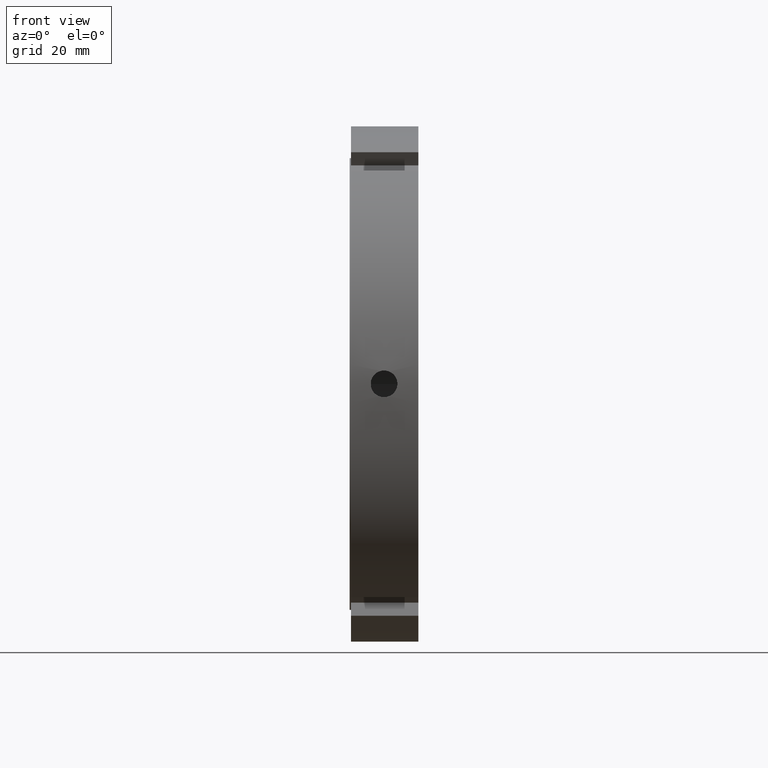
[diagram: clean part render]
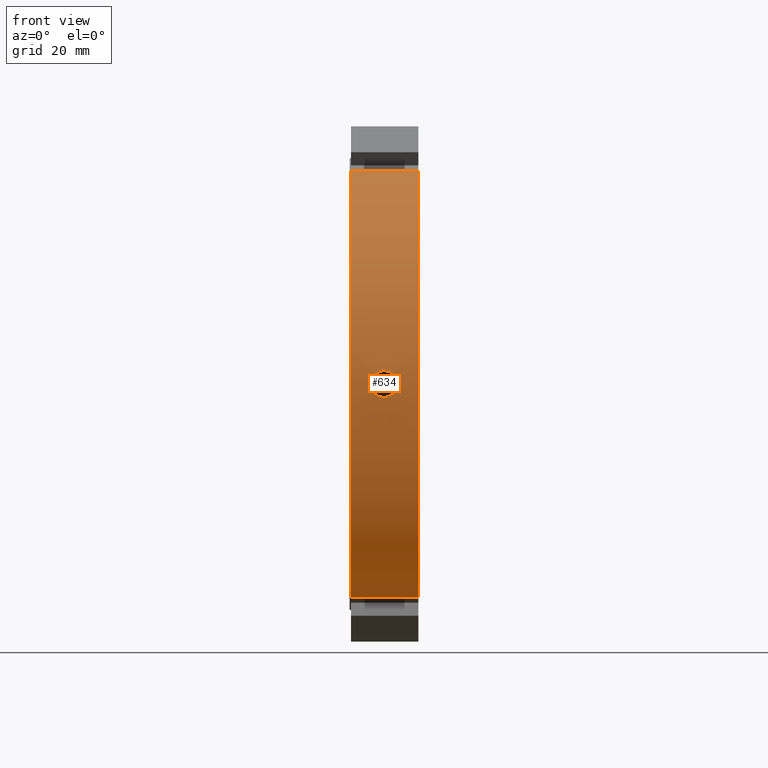
[diagram: same view with one face highlighted and labeled with its STEP entity id]
A machine part, front view. The second image highlights one B-rep face of the part: STEP entity #634.
In plain terms, the highlighted cylindrical surface (partial cylindrical patch) has radius 97.5 mm, axis along (1, 0, 0).
Its self-contained STEP definition (entity closure, byte-faithful):
#75=CARTESIAN_POINT('',(0.499999999999972,-54.686374477952612,-80.719579077551785));
#76=VERTEX_POINT('',#75);
#91=CARTESIAN_POINT('',(25.999999999999979,-54.686374477952612,-80.719579077551785));
#92=VERTEX_POINT('',#91);
#99=CARTESIAN_POINT('',(0.499999999999972,-54.686374477952612,-80.719579077551771));
#100=DIRECTION('',(1.0,0.0,0.0));
#101=VECTOR('',#100,25.500000000000007);
#102=LINE('',#99,#101);
#103=EDGE_CURVE('',#76,#92,#102,.T.);
#303=CARTESIAN_POINT('',(0.499999999999972,-54.686374477952555,80.719579077551828));
#304=VERTEX_POINT('',#303);
#313=CARTESIAN_POINT('',(25.999999999999979,-54.686374477952555,80.719579077551828));
#314=VERTEX_POINT('',#313);
#315=CARTESIAN_POINT('',(25.999999999999979,-54.686374477952555,80.719579077551828));
#316=DIRECTION('',(-1.0,0.0,0.0));
#317=VECTOR('',#316,25.500000000000007);
#318=LINE('',#315,#317);
#319=EDGE_CURVE('',#314,#304,#318,.T.);
#499=CARTESIAN_POINT('',(25.999999999999979,0.0,0.0));
#500=DIRECTION('',(1.0,0.0,0.0));
#501=DIRECTION('',(0.0,1.0,0.0));
#502=AXIS2_PLACEMENT_3D('',#499,#500,#501);
#503=CIRCLE('',#502,97.500000000000000);
#504=EDGE_CURVE('',#314,#92,#503,.T.);
#576=CARTESIAN_POINT('',(13.249999999999975,0.0,0.0));
#577=DIRECTION('',(1.0,0.0,0.0));
#578=DIRECTION('',(0.0,1.0,0.0));
#579=AXIS2_PLACEMENT_3D('',#576,#577,#578);
#580=CYLINDRICAL_SURFACE('',#579,97.500000000000000);
#581=ORIENTED_EDGE('',*,*,#103,.T.);
#582=ORIENTED_EDGE('',*,*,#504,.F.);
#583=ORIENTED_EDGE('',*,*,#319,.T.);
#584=CARTESIAN_POINT('',(0.499999999999972,0.0,0.0));
#585=DIRECTION('',(1.0,0.0,0.0));
#586=DIRECTION('',(0.0,1.0,0.0));
#587=AXIS2_PLACEMENT_3D('',#584,#585,#586);
#588=CIRCLE('',#587,97.500000000000000);
#589=EDGE_CURVE('',#304,#76,#588,.T.);
#590=ORIENTED_EDGE('',*,*,#589,.T.);
#591=EDGE_LOOP('',(#581,#582,#583,#590));
#592=FACE_OUTER_BOUND('',#591,.T.);
#593=CARTESIAN_POINT('',(12.999999999999979,-97.368974478526766,5.053000000000000));
#594=VERTEX_POINT('',#593);
#595=CARTESIAN_POINT('',(12.999999999999979,-97.368974478526766,5.053000000000000));
#596=CARTESIAN_POINT('',(13.634587972057997,-97.368974478526766,5.053000000000000));
#597=CARTESIAN_POINT('',(14.311396599046720,-97.375816544670386,4.926154171616794));
#598=CARTESIAN_POINT('',(15.556317737733581,-97.400537200313096,4.410441664610868));
#599=CARTESIAN_POINT('',(16.124439886049633,-97.418059776064482,4.021581244621594));
#600=CARTESIAN_POINT('',(17.021581135228150,-97.450958747754584,3.124439995443078));
#601=CARTESIAN_POINT('',(17.410441637241568,-97.468471051238680,2.556317797342441));
#602=CARTESIAN_POINT('',(17.926154214932694,-97.493168216866678,1.311396500942987));
#603=CARTESIAN_POINT('',(18.052999999999976,-97.500000000000000,0.634587817300354));
#604=CARTESIAN_POINT('',(18.052999999999976,-97.500000000000000,-0.634587817300352));
#605=CARTESIAN_POINT('',(17.926154214932691,-97.493168216866678,-1.311396500942985));
#606=CARTESIAN_POINT('',(17.410441637241572,-97.468471051238680,-2.556317797342437));
#607=CARTESIAN_POINT('',(17.021581135228150,-97.450958747754584,-3.124439995443078));
#608=CARTESIAN_POINT('',(16.124439886049636,-97.418059776064482,-4.021581244621594));
#609=CARTESIAN_POINT('',(15.556317737733579,-97.400537200313096,-4.410441664610870));
#610=CARTESIAN_POINT('',(14.311396599046720,-97.375816544670386,-4.926154171616795));
#611=CARTESIAN_POINT('',(13.634587972057997,-97.368974478526781,-5.053000000000000));
#612=CARTESIAN_POINT('',(12.365412027941961,-97.368974478526781,-5.053000000000000));
#613=CARTESIAN_POINT('',(11.688603400953234,-97.375816544670386,-4.926154171616796));
#614=CARTESIAN_POINT('',(10.443682262266377,-97.400537200313096,-4.410441664610869));
#615=CARTESIAN_POINT('',(9.875560113950323,-97.418059776064482,-4.021581244621594));
#616=CARTESIAN_POINT('',(8.978418864771809,-97.450958747754584,-3.124439995443080));
#617=CARTESIAN_POINT('',(8.589558362758389,-97.468471051238680,-2.556317797342442));
#618=CARTESIAN_POINT('',(8.073845785067267,-97.493168216866678,-1.311396500942990));
#619=CARTESIAN_POINT('',(7.946999999999980,-97.500000000000000,-0.634587817300355));
#620=CARTESIAN_POINT('',(7.946999999999979,-97.500000000000000,0.634587817300352));
#621=CARTESIAN_POINT('',(8.073845785067265,-97.493168216866678,1.311396500942985));
#622=CARTESIAN_POINT('',(8.589558362758385,-97.468471051238680,2.556317797342437));
#623=CARTESIAN_POINT('',(8.978418864771808,-97.450958747754584,3.124439995443077));
#624=CARTESIAN_POINT('',(9.875560113950321,-97.418059776064482,4.021581244621593));
#625=CARTESIAN_POINT('',(10.443682262266375,-97.400537200313096,4.410441664610868));
#626=CARTESIAN_POINT('',(11.688603400953234,-97.375816544670386,4.926154171616796));
#627=CARTESIAN_POINT('',(12.365412027941961,-97.368974478526766,5.052999999999999));
#628=CARTESIAN_POINT('',(12.999999999999979,-97.368974478526766,5.052999999999999));
#629=B_SPLINE_CURVE_WITH_KNOTS('',3,(#595,#596,#597,#598,#599,#600,#601,#602,#603,#604,#605,#606,#607,#608,#609,#610,#611,#612,#613,#614,#615,#616,#617,#618,#619,#620,#621,#622,#623,#624,#625,#626,#627,#628),.UNSPECIFIED.,.T.,.U.,(4,2,2,2,2,2,2,2,2,2,2,2,2,2,2,2,4),(0.0,0.190376391617405,0.380752783234810,0.571129128424916,0.761505473615022,0.951881818805128,1.142258163995234,1.332634555612639,1.523010947230044,1.713387338847449,1.903763730464854,2.094140075654960,2.284516420845066,2.474892766035172,2.665269111225278,2.855645502842683,3.046021894460088),.UNSPECIFIED.);
#630=EDGE_CURVE('',#594,#594,#629,.T.);
#631=ORIENTED_EDGE('',*,*,#630,.T.);
#632=EDGE_LOOP('',(#631));
#633=FACE_BOUND('',#632,.T.);
#634=ADVANCED_FACE('',(#592,#633),#580,.T.);